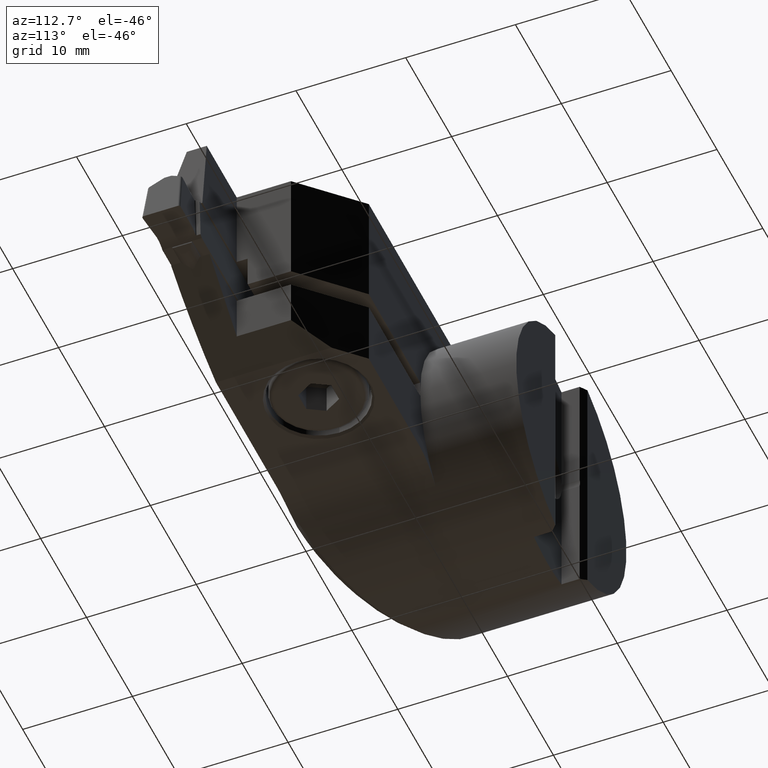
[diagram: clean part render]
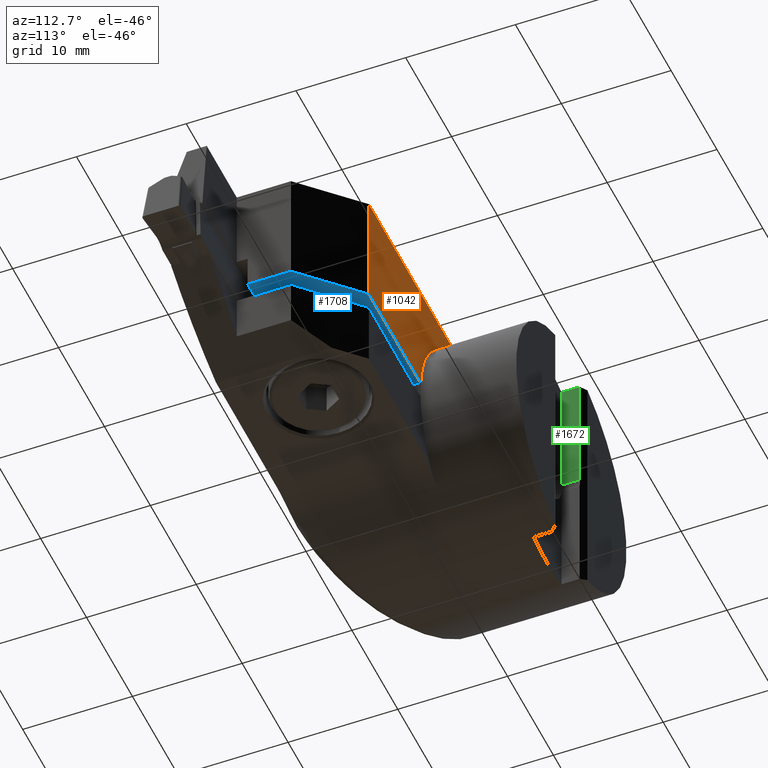
[diagram: same view with three faces highlighted in distinct colors, each labeled with its STEP entity id]
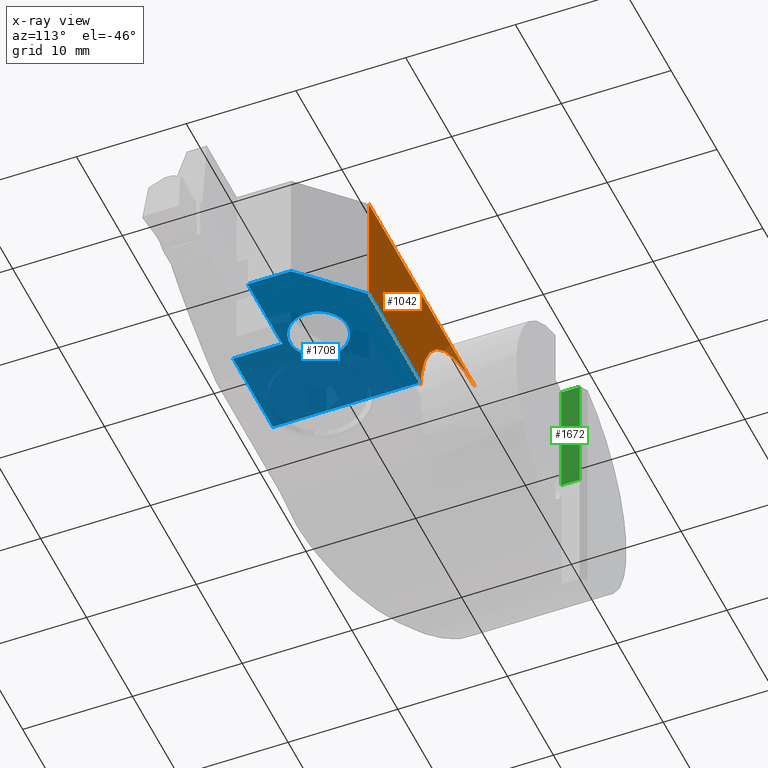
[diagram: x-ray of the same camera — body ghosted, the three highlighted faces saturated]
A machine part, auxiliary view with three faces highlighted in distinct colors.
The next image is the same camera in x-ray (body ghosted, the three faces saturated) — at least one of them is partly hidden behind the body in this view.
Their STEP definitions:

[orange] entity #1042 — the highlighted planar face has unit normal (0, 1, 0).
#908=EDGE_CURVE('Kante81',#1562,#922,#2385,.F.);
#922=VERTEX_POINT('NONE',#2401);
#952=EDGE_CURVE('Kante86',#922,#1552,#2434,.F.);
#1042=ADVANCED_FACE('NONE',(#2535),#2536,.T.);
#1282=VERTEX_POINT('NONE',#2799);
#1284=EDGE_CURVE('Kante39',#1366,#1282,#2801,.F.);
#1346=EDGE_CURVE('Kante48',#1562,#1366,#2868,.F.);
#1366=VERTEX_POINT('NONE',#2888);
#1552=VERTEX_POINT('NONE',#3093);
#1562=VERTEX_POINT('NONE',#3105);
#2196=EDGE_CURVE('Kante77',#1282,#1552,#3808,.F.);
#2385=LINE('',#4100,#4101);
#2401=CARTESIAN_POINT('',(0.0,-8.75,12.0));
#2434=CIRCLE('',#4171,12.0);
#2535=FACE_OUTER_BOUND('',#4392,.T.);
#2536=PLANE('',#4393);
#2799=CARTESIAN_POINT('',(12.0,-8.75,1.1));
#2801=LINE('',#5039,#5040);
#2868=LINE('',#5145,#5146);
#2888=CARTESIAN_POINT('',(23.2,-8.75,1.1));
#3093=CARTESIAN_POINT('',(12.0,-8.75,7.34763812293426E-016));
#3105=CARTESIAN_POINT('',(23.2,-8.75,12.0));
#3808=LINE('',#6882,#6883);
#4100=CARTESIAN_POINT('',(-6.01853107621011E-033,-8.75,12.0));
#4101=VECTOR('',#7054,1.0);
#4171=AXIS2_PLACEMENT_3D('',#7126,#7127,#7128);
#4392=EDGE_LOOP('',(#7254,#7255,#7256,#7257,#7258));
#4393=AXIS2_PLACEMENT_3D('',#7259,#7260,#7261);
#5039=CARTESIAN_POINT('',(6.0,-8.75,1.1));
#5040=VECTOR('',#7552,1.0);
#5145=CARTESIAN_POINT('',(23.2,-8.75,0.0));
#5146=VECTOR('',#7612,1.0);
#6882=CARTESIAN_POINT('',(12.0,-8.75,-0.25));
#6883=VECTOR('',#8605,1.0);
#7054=DIRECTION('',(1.0,0.0,0.0));
#7126=CARTESIAN_POINT('',(0.0,-8.75,0.0));
#7127=DIRECTION('',(0.0,-1.0,0.0));
#7128=DIRECTION('',(0.0,0.0,1.0));
#7254=ORIENTED_EDGE('',*,*,#908,.F.);
#7255=ORIENTED_EDGE('',*,*,#1346,.T.);
#7256=ORIENTED_EDGE('',*,*,#1284,.T.);
#7257=ORIENTED_EDGE('',*,*,#2196,.T.);
#7258=ORIENTED_EDGE('',*,*,#952,.F.);
#7259=CARTESIAN_POINT('',(0.0,-8.75,0.0));
#7260=DIRECTION('',(0.0,1.0,0.0));
#7261=DIRECTION('',(0.0,0.0,1.0));
#7552=DIRECTION('',(1.0,0.0,0.0));
#7612=DIRECTION('',(-0.0,0.0,1.0));
#8605=DIRECTION('',(0.0,0.0,1.0));

[blue] entity #1708 — the highlighted planar face has unit normal (0, 0, -1).
#806=EDGE_CURVE('Kante115',#1186,#1798,#2277,.T.);
#840=EDGE_CURVE('Kante100',#2078,#1794,#2312,.F.);
#926=VERTEX_POINT('NONE',#2405);
#1136=VERTEX_POINT('NONE',#2637);
#1186=VERTEX_POINT('NONE',#2693);
#1268=VERTEX_POINT('NONE',#2784);
#1282=VERTEX_POINT('NONE',#2799);
#1284=EDGE_CURVE('Kante39',#1366,#1282,#2801,.F.);
#1318=EDGE_CURVE('Kante102',#1366,#1136,#2839,.F.);
#1366=VERTEX_POINT('NONE',#2888);
#1458=EDGE_CURVE('NONE',#1136,#1268,#2993,.T.);
#1508=EDGE_CURVE('Kante100',#1794,#2078,#3048,.T.);
#1678=EDGE_CURVE('Kante38',#1186,#926,#3226,.T.);
#1696=EDGE_CURVE('Kante91',#1268,#926,#3246,.T.);
#1708=ADVANCED_FACE('NONE',(#3259,#3260),#3261,.T.);
#1794=VERTEX_POINT('NONE',#3362);
#1798=VERTEX_POINT('NONE',#3366);
#2056=EDGE_CURVE('Kante58',#1798,#1282,#3654,.F.);
#2078=VERTEX_POINT('NONE',#3677);
#2277=LINE('',#3908,#3909);
#2312=CIRCLE('',#3968,2.65);
#2405=CARTESIAN_POINT('',(20.6365753905119,-17.7,1.1));
#2637=CARTESIAN_POINT('',(28.2,-13.75,1.1));
#2693=CARTESIAN_POINT('',(20.6365753905119,-22.1860897299355,1.1));
#2784=CARTESIAN_POINT('',(28.2,-17.7,1.1));
#2799=CARTESIAN_POINT('',(12.0,-8.75,1.1));
#2801=LINE('',#5039,#5040);
#2839=LINE('',#5099,#5100);
#2888=CARTESIAN_POINT('',(23.2,-8.75,1.1));
#2993=LINE('',#5408,#5409);
#3048=CIRCLE('',#5496,2.65);
#3226=LINE('',#5857,#5858);
#3246=LINE('',#5896,#5897);
#3259=FACE_OUTER_BOUND('',#5975,.T.);
#3260=FACE_BOUND('',#5976,.T.);
#3261=PLANE('',#5977);
#3362=CARTESIAN_POINT('',(23.15,-14.45,1.1));
#3366=CARTESIAN_POINT('',(12.0,-22.1860897299355,1.1));
#3654=LINE('',#6639,#6640);
#3677=CARTESIAN_POINT('',(17.85,-14.45,1.1));
#3908=CARTESIAN_POINT('',(-17.6127080987776,-22.1860897299355,1.1));
#3909=VECTOR('',#6953,1.0);
#3968=AXIS2_PLACEMENT_3D('',#6973,#6974,#6975);
#5039=CARTESIAN_POINT('',(6.0,-8.75,1.1));
#5040=VECTOR('',#7552,1.0);
#5099=CARTESIAN_POINT('',(23.7625,-9.31250000000002,1.1));
#5100=VECTOR('',#7593,1.0);
#5408=CARTESIAN_POINT('',(28.2,-20.4477568135664,1.1));
#5409=VECTOR('',#7740,1.0);
#5496=AXIS2_PLACEMENT_3D('',#7804,#7805,#7806);
#5857=CARTESIAN_POINT('',(20.6365753905119,-19.95,1.1));
#5858=VECTOR('',#7951,1.0);
#5896=CARTESIAN_POINT('',(16.8856041498713,-17.7,1.1));
#5897=VECTOR('',#7978,1.0);
#5975=EDGE_LOOP('',(#7987,#7988,#7989,#7990,#7991,#7992,#7993));
#5976=EDGE_LOOP('',(#7994,#7995));
#5977=AXIS2_PLACEMENT_3D('',#7996,#7997,#7998);
#6639=CARTESIAN_POINT('',(12.0,-22.2,1.1));
#6640=VECTOR('',#8438,1.0);
#6953=DIRECTION('',(-1.0,0.0,0.0));
#6973=CARTESIAN_POINT('',(20.5,-14.45,1.1));
#6974=DIRECTION('',(0.0,0.0,-1.0));
#6975=DIRECTION('',(1.0,0.0,0.0));
#7552=DIRECTION('',(1.0,0.0,0.0));
#7593=DIRECTION('',(-0.707106781186546,0.707106781186549,-0.0));
#7740=DIRECTION('',(0.0,-1.0,0.0));
#7804=CARTESIAN_POINT('',(20.5,-14.45,1.1));
#7805=DIRECTION('',(0.0,0.0,1.0));
#7806=DIRECTION('',(1.0,0.0,0.0));
#7951=DIRECTION('',(1.52839072773287E-016,1.0,0.0));
#7978=DIRECTION('',(-1.0,3.57028744646768E-048,-0.0));
#7987=ORIENTED_EDGE('',*,*,#1678,.F.);
#7988=ORIENTED_EDGE('',*,*,#806,.T.);
#7989=ORIENTED_EDGE('',*,*,#2056,.T.);
#7990=ORIENTED_EDGE('',*,*,#1284,.F.);
#7991=ORIENTED_EDGE('',*,*,#1318,.T.);
#7992=ORIENTED_EDGE('',*,*,#1458,.T.);
#7993=ORIENTED_EDGE('',*,*,#1696,.T.);
#7994=ORIENTED_EDGE('',*,*,#1508,.T.);
#7995=ORIENTED_EDGE('',*,*,#840,.T.);
#7996=CARTESIAN_POINT('',(12.0,-22.2,1.1));
#7997=DIRECTION('',(0.0,0.0,-1.0));
#7998=DIRECTION('',(1.0,0.0,0.0));
#8438=DIRECTION('',(0.0,-1.0,0.0));

[green] entity #1672 — the highlighted planar face has unit normal (-1, 0, 0).
#798=VERTEX_POINT('NONE',#2269);
#932=VERTEX_POINT('NONE',#2411);
#1038=VERTEX_POINT('NONE',#2531);
#1498=EDGE_CURVE('NONE',#932,#798,#3038,.T.);
#1516=VERTEX_POINT('NONE',#3056);
#1672=ADVANCED_FACE('NONE',(#3219),#3220,.F.);
#1702=EDGE_CURVE('Kante5',#798,#1038,#3253,.F.);
#1722=EDGE_CURVE('Kante4',#1516,#1038,#3277,.F.);
#2118=EDGE_CURVE('NONE',#932,#1516,#3719,.F.);
#2269=CARTESIAN_POINT('',(-3.0,-2.15,0.388104367406503));
#2411=CARTESIAN_POINT('',(-3.0,-2.15,11.6189500386223));
#2531=CARTESIAN_POINT('',(-3.0,-0.5,0.388104367406503));
#3038=LINE('',#5480,#5481);
#3056=CARTESIAN_POINT('',(-3.0,-0.5,11.6189500386223));
#3219=FACE_OUTER_BOUND('',#5847,.T.);
#3220=PLANE('',#5848);
#3253=LINE('',#5946,#5947);
#3277=LINE('',#6012,#6013);
#3719=LINE('',#6745,#6746);
#5480=CARTESIAN_POINT('',(-3.0,-2.15,15.0));
#5481=VECTOR('',#7801,1.0);
#5847=EDGE_LOOP('',(#7943,#7944,#7945,#7946));
#5848=AXIS2_PLACEMENT_3D('',#7947,#7948,#7949);
#5946=CARTESIAN_POINT('',(-3.0,0.0,0.388104367406503));
#5947=VECTOR('',#7985,1.0);
#6012=CARTESIAN_POINT('',(-3.0,-0.5,15.0));
#6013=VECTOR('',#8011,1.0);
#6745=CARTESIAN_POINT('',(-3.0,-11.17,11.6189500386223));
#6746=VECTOR('',#8480,1.0);
#7801=DIRECTION('',(0.0,0.0,-1.0));
#7943=ORIENTED_EDGE('',*,*,#1702,.T.);
#7944=ORIENTED_EDGE('',*,*,#1722,.F.);
#7945=ORIENTED_EDGE('',*,*,#2118,.F.);
#7946=ORIENTED_EDGE('',*,*,#1498,.T.);
#7947=CARTESIAN_POINT('',(-3.0,0.0,15.0));
#7948=DIRECTION('',(-1.0,0.0,0.0));
#7949=DIRECTION('',(0.0,0.0,-1.0));
#7985=DIRECTION('',(0.0,-1.0,0.0));
#8011=DIRECTION('',(0.0,0.0,1.0));
#8480=DIRECTION('',(0.0,-1.0,0.0));